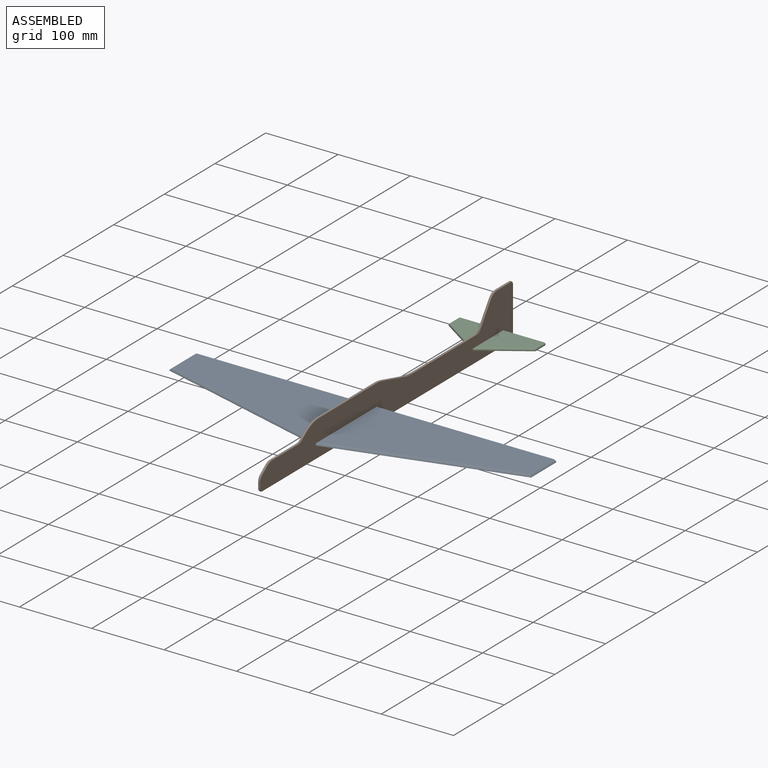
[diagram: assembled view]
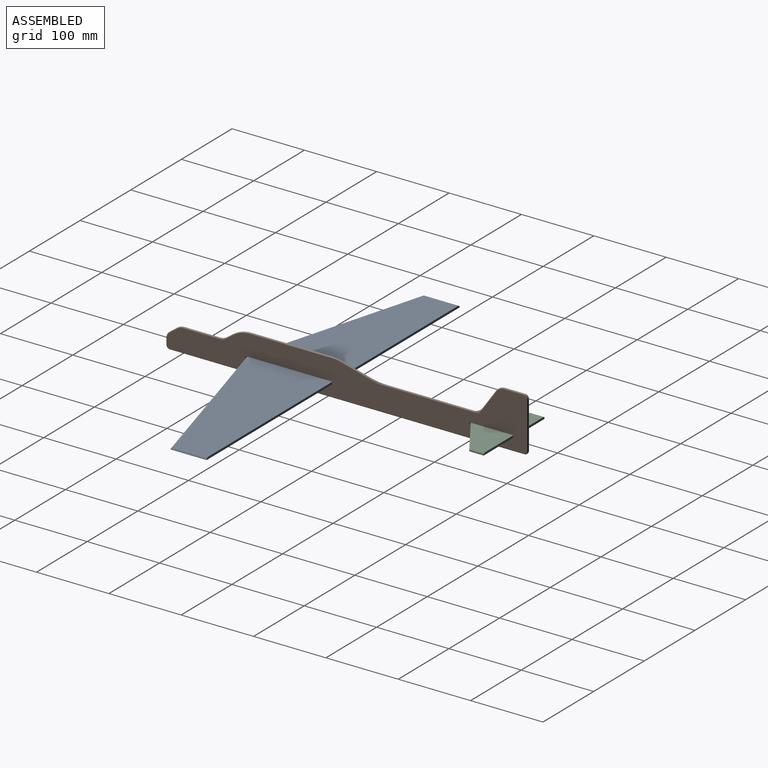
[diagram: assembled view, second angle]
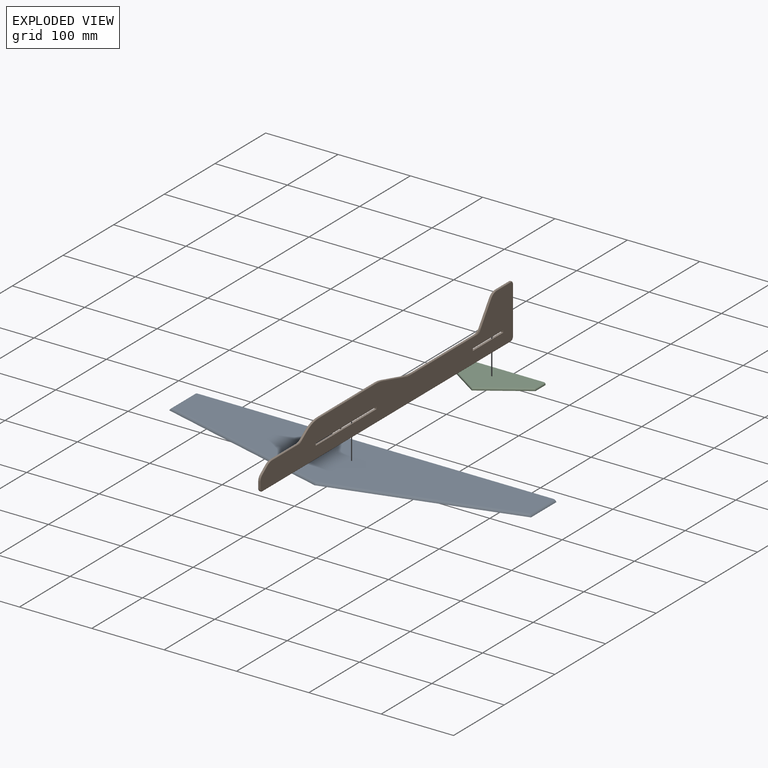
[diagram: exploded view]
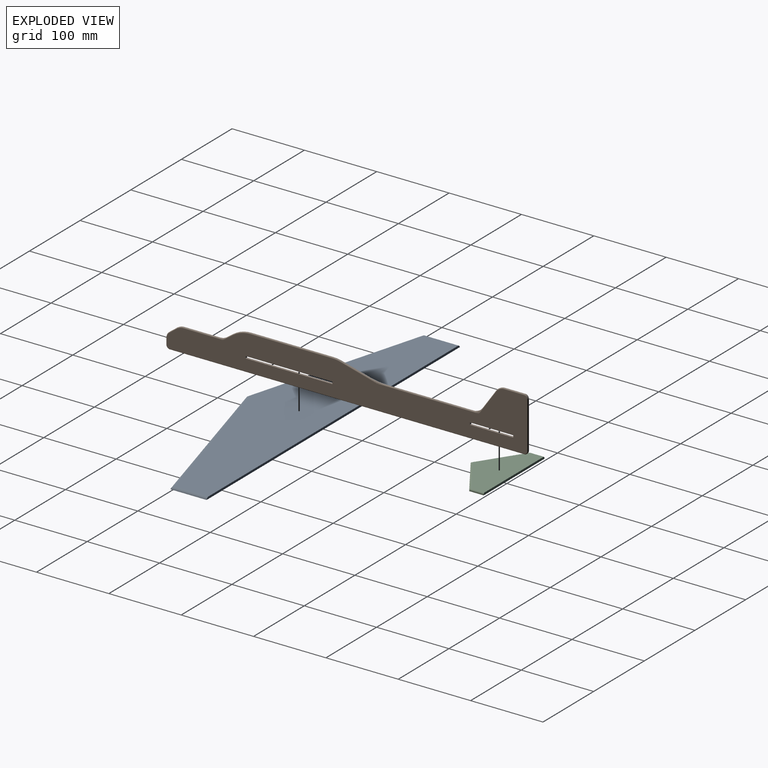
[diagram: exploded view, second angle]
ASSEMBLY  parts=3 mates=2
PART A: 7 faces, bbox 500x120x3 mm
  f0: plane 500x3mm, normal (0,1,0), area 1494mm2, adj f1,f2,f3,f6
  f1: plane 492.25x115.98mm, normal (0,0,1), area 40128.7mm2, adj f0,f3,f4,f5,f6
  f2: plane 500x120mm, normal (0,0,-1), area 42500mm2, adj f0,f3,f4,f5,f6
  f3: cylinder r=4mm len=50mm, axis (0,-1,0), area 257.2mm2, adj f0,f1,f2,f4
  f4: cylinder r=4mm len=251.04mm, axis (-0.96,-0.27,0), area 1360.1mm2, adj f1,f2,f3,f5
  f5: cylinder r=4mm len=251.04mm, axis (0.96,-0.27,0), area 1360.1mm2, adj f1,f2,f4,f6
  f6: cylinder r=4mm len=50mm, axis (0,-1,0), area 257.2mm2, adj f0,f1,f2,f5
PART B: 78 faces, bbox 3x501.3x76.6 mm
  f0: plane 498x73mm, normal (1,0,0), area 20194.5mm2, adj f14,f15,f16,f17,f18,f19,f20,f21
  f1: plane 498x73mm, normal (-1,0,0), area 20194.5mm2, adj f14,f15,f16,f17,f18,f19,f20,f21
  f2: bspline ~1.36x0.8mm, area 0.1mm2, adj f23,f25,f66
  f3: bspline ~0.8x0.47mm, area 0.1mm2, adj f34,f36,f68
  f4: plane 8.4x1mm, normal (0,-1,0), area 8.4mm2, adj f30,f41,f55,f58
  f5: plane 490x1mm, normal (0,0,-1), area 490mm2, adj f28,f39,f58,f76
  f6: plane 65x1mm, normal (0,1,0), area 65mm2, adj f26,f37,f73,f76
  f7: plane 27.64x1mm, normal (0,0,1), area 27.6mm2, adj f24,f35,f70,f73
  f8: plane 26.28x18.4mm, normal (0,-0.82,0.57), area 32.1mm2, adj f23,f34,f67,f70
  f9: plane 116.71x1mm, normal (0,0,1), area 116.7mm2, adj f25,f36,f64,f67
  f10: plane 37.27x9.87mm, normal (0,0.26,0.97), area 38.6mm2, adj f27,f38,f61,f64
  f11: plane 112.79x1mm, normal (0,0,1), area 112.8mm2, adj f29,f40,f46,f61
  f12: plane 9.34x6.69mm, normal (0,-0.58,0.81), area 11.5mm2, adj f31,f42,f46,f49
  f13: plane 49.38x1mm, normal (0,0,1), area 49.4mm2, adj f33,f44,f49,f52
  f14: plane 60x3mm, normal (0,0,1), area 180mm2, adj f0,f1,f15,f20
  f15: plane 3x3mm, normal (0,1,0), area 9mm2, adj f0,f1,f14,f16
  f16: plane 60x3mm, normal (0,0,-1), area 180mm2, adj f0,f1,f15,f20
  f17: plane 3x3mm, normal (0,-1,0), area 9mm2, adj f0,f1,f18,f21
  f18: plane 120x3mm, normal (0,0,1), area 360mm2, adj f0,f1,f17,f19
  f19: plane 3x3mm, normal (0,1,0), area 9mm2, adj f0,f1,f18,f21
  f20: plane 3x3mm, normal (0,-1,0), area 9mm2, adj f0,f1,f14,f16
  f21: plane 120x3mm, normal (0,0,-1), area 360mm2, adj f0,f1,f17,f19
  f22: plane 10.1x7.63mm, normal (0,-0.6,0.8), area 12.7mm2, adj f32,f43,f52,f55
  f23: cylinder r=1mm len=34.97mm, axis (0,-0.57,-0.82), area 56mm2, adj f1,f2,f8,f66,f71
  f24: cylinder r=1mm len=27.64mm, axis (0,-1,0), area 43.4mm2, adj f1,f7,f71,f74
  f25: cylinder r=1mm len=140.65mm, axis (0,-1,0), area 197mm2, adj f1,f2,f9,f63,f66
  f26: cylinder r=1mm len=65mm, axis (0,0,1), area 102.1mm2, adj f1,f6,f74,f77
  f27: cylinder r=1mm len=51.08mm, axis (0,-0.97,0.26), area 68.6mm2, adj f1,f10,f62,f63
  f28: cylinder r=1mm len=490mm, axis (0,1,0), area 769.7mm2, adj f1,f5,f59,f77
  f29: cylinder r=1mm len=112.79mm, axis (0,-1,0), area 177.2mm2, adj f1,f11,f47,f62
  f30: cylinder r=1mm len=8.4mm, axis (0,0,-1), area 13.2mm2, adj f1,f4,f56,f59
  f31: cylinder r=1mm len=14.33mm, axis (0,-0.81,-0.58), area 21.1mm2, adj f1,f12,f47,f48
  f32: cylinder r=1mm len=10.7mm, axis (0,-0.8,-0.6), area 19.9mm2, adj f1,f22,f53,f56
  f33: cylinder r=1mm len=54.81mm, axis (0,-1,0), area 80.7mm2, adj f1,f13,f48,f53
  f34: cylinder r=1mm len=34.97mm, axis (0,0.57,0.82), area 56mm2, adj f0,f3,f8,f68,f69
  f35: cylinder r=1mm len=27.64mm, axis (0,1,0), area 43.4mm2, adj f0,f7,f69,f72
  f36: cylinder r=1mm len=140.65mm, axis (0,1,0), area 197mm2, adj f0,f3,f9,f65,f68
  f37: cylinder r=1mm len=65mm, axis (0,0,-1), area 102.1mm2, adj f0,f6,f72,f75
  f38: cylinder r=1mm len=51.08mm, axis (0,0.97,-0.26), area 68.6mm2, adj f0,f10,f60,f65
  f39: cylinder r=1mm len=490mm, axis (0,-1,0), area 769.7mm2, adj f0,f5,f57,f75
  f40: cylinder r=1mm len=112.79mm, axis (0,1,0), area 177.2mm2, adj f0,f11,f45,f60
  f41: cylinder r=1mm len=8.4mm, axis (0,0,1), area 13.2mm2, adj f0,f4,f54,f57
  f42: cylinder r=1mm len=14.33mm, axis (0,0.81,0.58), area 21.1mm2, adj f0,f12,f45,f50
  f43: cylinder r=1mm len=10.7mm, axis (0,0.8,0.6), area 19.9mm2, adj f0,f22,f51,f54
  f44: cylinder r=1mm len=54.81mm, axis (0,1,0), area 80.7mm2, adj f0,f13,f50,f51
  f45: torus R=40.74mm, axis (1,0,0), area 40.4mm2, adj f0,f40,f42,f46
  f46: cylinder r=41.74mm len=24.3mm, axis (-1,0,0), area 25.9mm2, adj f11,f12,f45,f47
  f47: torus R=40.74mm, axis (1,0,0), area 40.4mm2, adj f1,f29,f31,f46
  f48: bspline ~9.26x3.97mm, area 11.8mm2, adj f31,f33,f49
  f49: cylinder r=15.9mm len=9.26mm, axis (1,0,0), area 9.9mm2, adj f12,f13,f48,f50
  f50: bspline ~9.26x3.97mm, area 11.8mm2, adj f42,f44,f49
  f51: torus R=15.44mm, axis (1,0,0), area 16.3mm2, adj f0,f43,f44,f52
  f52: cylinder r=16.44mm len=9.91mm, axis (-1,0,0), area 10.6mm2, adj f13,f22,f51,f53
  f53: torus R=15.44mm, axis (1,0,0), area 16.3mm2, adj f1,f32,f33,f52
  f54: torus R=9.25mm, axis (1,0,0), area 14.4mm2, adj f0,f41,f43,f55
  f55: cylinder r=10.25mm len=8.18mm, axis (1,0,0), area 9.5mm2, adj f4,f22,f54,f56
  f56: torus R=9.25mm, axis (1,0,0), area 14.4mm2, adj f1,f30,f32,f55
  f57: torus R=4mm, axis (1,0,0), area 11.4mm2, adj f0,f39,f41,f58
  f58: cylinder r=5mm len=5mm, axis (1,0,0), area 7.9mm2, adj f4,f5,f57,f59
  f59: torus R=4mm, axis (1,0,0), area 11.4mm2, adj f1,f28,f30,f58
  f60: torus R=46.45mm, axis (1,0,0), area 19.1mm2, adj f0,f38,f40,f61
  f61: cylinder r=47.45mm len=12.14mm, axis (-1,0,0), area 12.3mm2, adj f10,f11,f60,f62
  f62: torus R=46.45mm, axis (1,0,0), area 19.1mm2, adj f1,f27,f29,f61
  f63: bspline ~27.32x4.56mm, area 33.2mm2, adj f25,f27,f64
  f64: cylinder r=106.77mm len=27.32mm, axis (1,0,0), area 27.6mm2, adj f9,f10,f63,f65
  f65: bspline ~27.32x4.56mm, area 33.2mm2, adj f36,f38,f64
  f66: bspline ~14.79x8.65mm, area 28mm2, adj f2,f23,f25,f67
  f67: cylinder r=18.06mm len=14.79mm, axis (1,0,0), area 17.3mm2, adj f8,f9,f66,f68
  f68: bspline ~14.79x8.65mm, area 28mm2, adj f3,f34,f36,f67
  f69: torus R=13.13mm, axis (1,0,0), area 20.8mm2, adj f0,f34,f35,f70
  f70: cylinder r=14.13mm len=11.58mm, axis (-1,0,0), area 13.6mm2, adj f7,f8,f69,f71
  f71: torus R=13.13mm, axis (1,0,0), area 20.8mm2, adj f1,f23,f24,f70
  f72: torus R=4mm, axis (1,0,0), area 11.4mm2, adj f0,f35,f37,f73
  f73: cylinder r=5mm len=5mm, axis (1,0,0), area 7.9mm2, adj f6,f7,f72,f74
  f74: torus R=4mm, axis (1,0,0), area 11.4mm2, adj f1,f24,f26,f73
  f75: torus R=4mm, axis (1,0,0), area 11.4mm2, adj f0,f37,f39,f76
  f76: cylinder r=5mm len=5mm, axis (1,0,0), area 7.9mm2, adj f5,f6,f75,f77
  f77: torus R=4mm, axis (1,0,0), area 11.4mm2, adj f1,f26,f28,f76
PART C: 11 faces, bbox 120x60x3 mm
  f0: plane 20x1mm, normal (-1,0,0), area 20mm2, adj f1,f4,f6,f7
  f1: plane 60x40mm, normal (-0.55,-0.83,0), area 72.1mm2, adj f0,f2,f6,f9
  f2: plane 60x40mm, normal (0.55,-0.83,0), area 72.1mm2, adj f1,f3,f6,f10
  f3: plane 20x1mm, normal (1,0,0), area 20mm2, adj f2,f4,f6,f8
  f4: plane 120x3mm, normal (0,1,0), area 358.3mm2, adj f0,f3,f5,f6,f7,f8
  f5: plane 116x57.6mm, normal (0,0,1), area 4438.5mm2, adj f4,f7,f8,f9,f10
  f6: plane 120x60mm, normal (0,0,-1), area 4800mm2, adj f0,f1,f2,f3,f4
  f7: cylinder r=2mm len=20mm, axis (0,1,0), area 61.6mm2, adj f0,f4,f5,f9
  f8: cylinder r=2mm len=20mm, axis (0,-1,0), area 61.6mm2, adj f3,f4,f5,f10
  f9: cylinder r=2mm len=61.11mm, axis (-0.83,0.55,0), area 223.8mm2, adj f1,f5,f7,f10
  f10: cylinder r=2mm len=61.11mm, axis (-0.83,-0.55,0), area 223.8mm2, adj f2,f5,f8,f9
PLACE A at identity
PLACE B at identity fixed
PLACE C t=(0,280,0)mm
MATE fastened C.f6 <-> B.f14  axis (0,0,-1) through (0,250,-1.5)mm
MATE fastened A.f2 <-> B.f18  axis (0,0,1) through (0,-60,-1.5)mm
